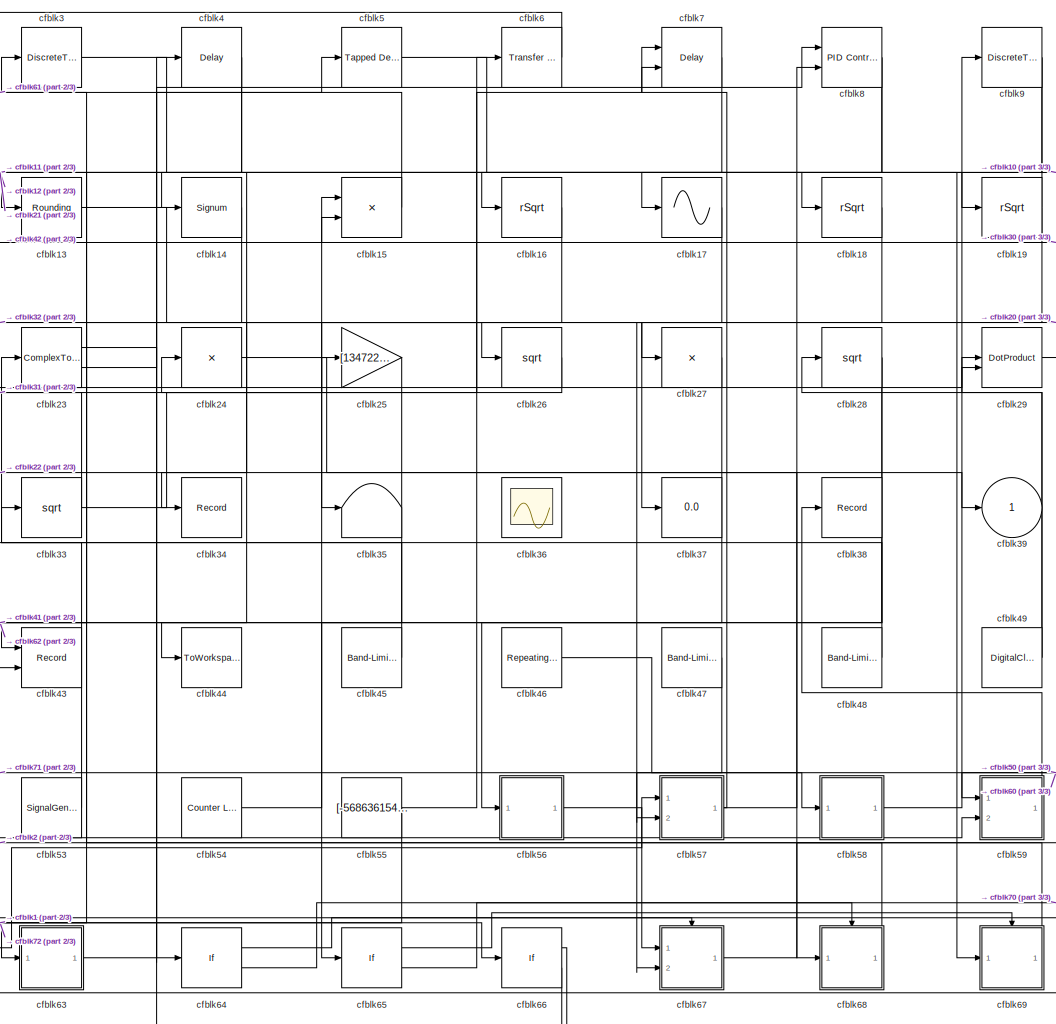
[diagram: root canvas - part 1/3, center side, full height]
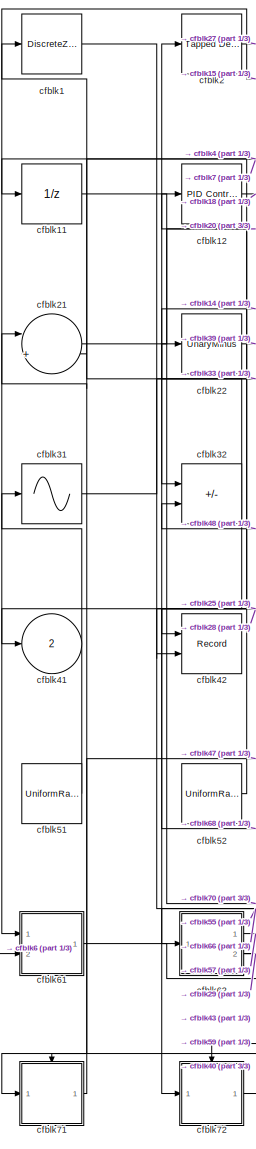
[diagram: root canvas - part 2/3, left side, full height]
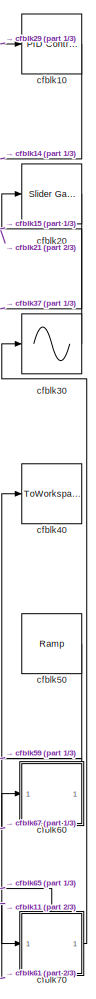
[diagram: root canvas - part 3/3, right side, full height]
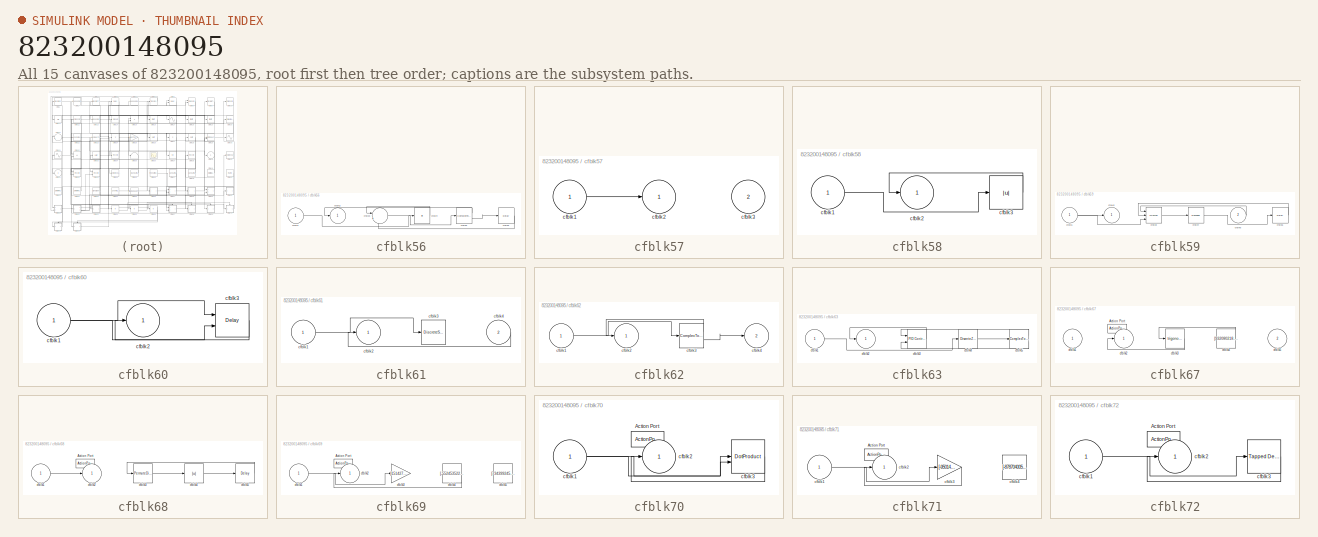
[diagram: thumbnail index - all 15 canvases of the model, root first then tree order]
MODEL slx_823200148095
KIND model
CONFIG AbsTol = auto
CONFIG EnableMultiTasking = off
CONFIG FixedStep = auto
CONFIG MaxStep = auto
CONFIG MinStep = auto
CONFIG RelTol = 1e-3
CONFIG SampleTimeConstraint = Unconstrained
CONFIG SolverName = VariableStepAuto
CONFIG StartTime = 0.0
CONFIG StopTime = 10.0
BLOCK [DiscreteZeroPole] cfblk1
  Gain = 1
  Poles = [0 0.5]
BLOCK [Reference] cfblk10  REF=slpidlib/PID Controller
  Ports = [1, 1]
  SourceBlock = slpidlib/PID Controller
  SourceProductBaseCode = SL
  SourceType = PID 1dof
BLOCK [UnitDelay] cfblk11
  HasFrameUpgradeWarning = on
BLOCK [Reference] cfblk12  REF=slpidlib/PID Controller
  Ports = [1, 1]
  SourceBlock = slpidlib/PID Controller
  SourceProductBaseCode = SL
  SourceType = PID 1dof
BLOCK [Rounding] cfblk13
BLOCK [Signum] cfblk14
BLOCK [Product] cfblk15
  Ports = [2, 1]
BLOCK [Sqrt] cfblk16
  AlgorithmType = Newton-Raphson
  Operator = rSqrt
BLOCK [Sin] cfblk17
  Ports = [1, 1]
  SampleTime = 0
  TimeSource = Use external signal
BLOCK [Sqrt] cfblk18
  AlgorithmType = Newton-Raphson
  Operator = rSqrt
BLOCK [Sqrt] cfblk19
  AlgorithmType = Newton-Raphson
  Operator = rSqrt
BLOCK [Reference] cfblk2  REF=simulink/Discrete/Tapped Delay
  Ports = [1, 1]
  SourceBlock = simulink/Discrete/Tapped Delay
  SourceProductBaseCode = SL
  SourceType = Tapped Delay Line
BLOCK [Reference] cfblk20  REF=simulink/Math
Operations/Slider
Gain
  Ports = [1, 1]
  SourceBlock = simulink/Math\nOperations/Slider\nGain
  SourceProductBaseCode = SL
  SourceType = Slider Gain
BLOCK [Sum] cfblk21
  Inputs = |++
  Ports = [2, 1]
BLOCK [UnaryMinus] cfblk22
BLOCK [ComplexToRealImag] cfblk23
  Ports = [1, 2]
BLOCK [Product] cfblk24
  Inputs = *
  Ports = [1, 1]
BLOCK [Gain] cfblk25
  Gain = [134722466.496300]
BLOCK [Sqrt] cfblk26
BLOCK [Product] cfblk27
  Inputs = *
  Ports = [1, 1]
BLOCK [Sqrt] cfblk28
BLOCK [DotProduct] cfblk29
  OutDataTypeStr = Inherit: Inherit via internal rule
BLOCK [DiscreteTransferFcn] cfblk3
  InputPortMap = u0
  Ports = [1, 1]
  SampleTime = 1
BLOCK [Sin] cfblk30
  Ports = [1, 1]
  SampleTime = 0
  TimeSource = Use external signal
BLOCK [Sin] cfblk31
  Ports = [1, 1]
  SampleTime = 0
  TimeSource = Use external signal
BLOCK [Sum] cfblk32
  IconShape = rectangular
  Inputs = --
  Ports = [2, 1]
BLOCK [Sqrt] cfblk33
BLOCK [Record] cfblk34
  FileSettingsInternal = {"entries":[{"content":{"excelSettings":{"content":{},"type":"Streamout.ExcelSettings"}},"type":"Streamout.FileSettingStorage","uuid":"bef29b94-83e7-4027-bb16-41d4ccbf0901"}],"packageUris":["http://schema.mathworks.com/mf0/streamout_blocks/R2020a"],"version":"1.0"}
  Ports = [1]
  SignalsInternal = {"entries":[{"content":{"signals":[{"content":{"blockPath":["sampleModel218/cfblk34"],"channel":[],"dimensions":[1],"domain":"sampleModel218/cfblk34","lineColor":"#22b573","plots":[1],"port":1,"sid":[""],"signalID":8404,"signalName":"cfblk19"},"type":"RecordBlkView.Signal","uuid":"682ba5d6-6170-4be6-8bc8-0b991276eb6c"}]},"type":"RecordBlkView.InputSignals","uuid":"6295e5b2-cd98-4886-a6f9-ad50cf434...<+97ch>
  VisualizationBindings = {"sparklinesplugin":{"info":[{"bindingParametersList":[],"subplotID":1}]}}
BLOCK [Terminator] cfblk35
BLOCK [Scope] cfblk36
  Floating = on
  NumInputPorts = 1
  Ports = []
BLOCK [Display] cfblk37
  Decimation = 1
  Ports = [1]
BLOCK [Record] cfblk38
  FileSettingsInternal = {"entries":[{"content":{"excelSettings":{"content":{},"type":"Streamout.ExcelSettings"}},"type":"Streamout.FileSettingStorage","uuid":"ef8b5bfe-246b-4d62-b1cf-833902d1d4e0"}],"packageUris":["http://schema.mathworks.com/mf0/streamout_blocks/R2020a"],"version":"1.0"}
  Ports = [1]
  SignalsInternal = {"entries":[{"content":{"signals":[{"content":{"blockPath":["sampleModel218/cfblk38"],"channel":[],"dimensions":[1],"domain":"sampleModel218/cfblk38","lineColor":"#0072bd","plots":[1],"port":1,"sid":[""],"signalID":8408,"signalName":"cfblk59"},"type":"RecordBlkView.Signal","uuid":"0fe45656-84e1-4a5c-a7af-568f8e2af6bb"}]},"type":"RecordBlkView.InputSignals","uuid":"4302e319-4bc6-44ac-a890-59bb7af18...<+97ch>
  VisualizationBindings = {"sparklinesplugin":{"info":[{"bindingParametersList":[],"subplotID":1}]}}
BLOCK [Outport] cfblk39
BLOCK [Delay] cfblk4
  InputPortMap = u0
  Ports = [1, 1]
  SampleTime = 1
BLOCK [ToWorkspace] cfblk40
  FixptAsFi = on
  MaxDataPoints = inf
  Ports = [1]
  SampleTime = -1
  SaveFormat = Timeseries
  VariableName = ihyokqd
BLOCK [Outport] cfblk41
  Port = 2
BLOCK [Record] cfblk42
  CompatibilityTag = XY
  FileSettingsInternal = {"entries":[{"content":{"excelSettings":{"content":{},"type":"Streamout.ExcelSettings"}},"type":"Streamout.FileSettingStorage","uuid":"dbb91467-e294-4d94-b3b6-49aeea81b615"}],"packageUris":["http://schema.mathworks.com/mf0/streamout_blocks/R2020a"],"version":"1.0"}
  Layout = [1 1]
  Ports = [2]
  SignalsInternal = {"entries":[{"content":{"signals":[{"content":{"blockPath":["sampleModel218/cfblk42"],"channel":[],"dimensions":[1],"domain":"sampleModel218/cfblk42","lineColor":"#a2142f","plots":[1],"port":1,"sid":[""],"signalID":8412,"signalName":"cfblk4"},"type":"RecordBlkView.Signal","uuid":"7130b70c-b836-4d37-b96f-bf4e3a6d3351"},{"content":{"blockPath":["sampleModel218/cfblk42"],"channel":[],"dimensions":[1]...<+382ch>
  VisualizationBindings = {"xyplotplugin":{"info":[{"series":[{"bindingParametersList":[{"parameter":"X-Axis","signalID":8412,"signalName":"cfblk4"},{"parameter":"Y-Axis","signalID":8416,"signalName":"cfblk32"}],"seriesID":11565}],"subplotID":1}]}}
BLOCK [Record] cfblk43
  CompatibilityTag = XY
  FileSettingsInternal = {"entries":[{"content":{"excelSettings":{"content":{},"type":"Streamout.ExcelSettings"}},"type":"Streamout.FileSettingStorage","uuid":"aa4a06b4-b09d-4da7-b96e-afa9f30de699"}],"packageUris":["http://schema.mathworks.com/mf0/streamout_blocks/R2020a"],"version":"1.0"}
  Layout = [1 1]
  Ports = [2]
  SignalsInternal = {"entries":[{"content":{"signals":[{"content":{"blockPath":["sampleModel218/cfblk43"],"channel":[],"dimensions":[1],"domain":"sampleModel218/cfblk43","lineColor":"#a2142f","plots":[1],"port":1,"sid":[""],"signalID":8420,"signalName":"cfblk8"},"type":"RecordBlkView.Signal","uuid":"6fbb2089-a476-4745-ac5b-b64432680390"},{"content":{"blockPath":["sampleModel218/cfblk43"],"channel":[],"dimensions":[1]...<+384ch>
  VisualizationBindings = {"xyplotplugin":{"info":[{"series":[{"bindingParametersList":[{"parameter":"X-Axis","signalID":8420,"signalName":"cfblk8"},{"parameter":"Y-Axis","signalID":8424,"signalName":"cfblk62:2"}],"seriesID":17078}],"subplotID":1}]}}
BLOCK [ToWorkspace] cfblk44
  FixptAsFi = on
  MaxDataPoints = inf
  Ports = [1]
  SampleTime = -1
  SaveFormat = Timeseries
  VariableName = mmjkiwr
BLOCK [Reference] cfblk45  REF=simulink/Sources/Band-Limited
White Noise
  Ports = [0, 1]
  SourceBlock = simulink/Sources/Band-Limited\nWhite Noise
  SourceProductBaseCode = SL
  SourceType = Band-Limited White Noise.
BLOCK [Reference] cfblk46  REF=simulink/Sources/Repeating
Sequence
Interpolated
  Ports = [0, 1]
  SourceBlock = simulink/Sources/Repeating\nSequence\nInterpolated
  SourceProductBaseCode = SL
  SourceType = Repeating Sequence Interpolated
BLOCK [Reference] cfblk47  REF=simulink/Sources/Band-Limited
White Noise
  Ports = [0, 1]
  SourceBlock = simulink/Sources/Band-Limited\nWhite Noise
  SourceProductBaseCode = SL
  SourceType = Band-Limited White Noise.
BLOCK [Reference] cfblk48  REF=simulink/Sources/Band-Limited
White Noise
  Ports = [0, 1]
  SourceBlock = simulink/Sources/Band-Limited\nWhite Noise
  SourceProductBaseCode = SL
  SourceType = Band-Limited White Noise.
BLOCK [DigitalClock] cfblk49
BLOCK [Reference] cfblk5  REF=simulink/Discrete/Tapped Delay
  Ports = [1, 1]
  SourceBlock = simulink/Discrete/Tapped Delay
  SourceProductBaseCode = SL
  SourceType = Tapped Delay Line
BLOCK [Reference] cfblk50  REF=simulink/Sources/Ramp
  Ports = [0, 1]
  SourceBlock = simulink/Sources/Ramp
  SourceProductBaseCode = SL
  SourceType = Ramp
BLOCK [UniformRandomNumber] cfblk51
  Maximum = [5315703352.345697]
  Minimum = [-2815779210.415660]
  SampleTime = 0.1
  Seed = [76985381.000000]
BLOCK [UniformRandomNumber] cfblk52
  Maximum = [4756830666.125814]
  Minimum = [-496374868.296474]
  SampleTime = 0.1
  Seed = [22339598.000000]
BLOCK [SignalGenerator] cfblk53
  Amplitude = [563606903.888826]
  Ports = [0, 1]
  Units = rad/sec
BLOCK [Reference] cfblk54  REF=simulink/Sources/Counter
Limited
  Ports = [0, 1]
  SourceBlock = simulink/Sources/Counter\nLimited
  SourceProductBaseCode = SL
  SourceType = Counter Limited
BLOCK [Constant] cfblk55
  SampleTime = 1
  Value = [-568636154.840050]
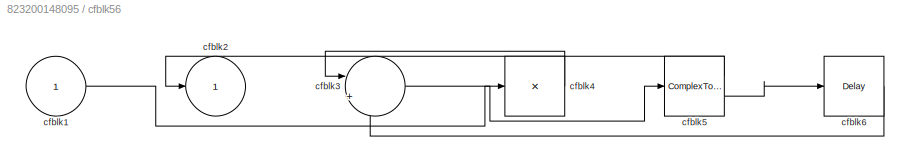
BLOCK [SubSystem] cfblk56
  Ports = [1, 1]
  RequestExecContextInheritance = off
BLOCK [Inport] cfblk56/cfblk1
BLOCK [Outport] cfblk56/cfblk2
BLOCK [Sum] cfblk56/cfblk3
  Inputs = |++
  Ports = [2, 1]
BLOCK [Product] cfblk56/cfblk4
  Inputs = *
  Ports = [1, 1]
BLOCK [ComplexToRealImag] cfblk56/cfblk5
  Ports = [1, 2]
BLOCK [Delay] cfblk56/cfblk6
  InputPortMap = u0
  Ports = [1, 1]
  SampleTime = 1
BLOCK [SubSystem] cfblk57
  Ports = [2, 1]
  RequestExecContextInheritance = off
BLOCK [Inport] cfblk57/cfblk1
BLOCK [Outport] cfblk57/cfblk2
BLOCK [Inport] cfblk57/cfblk3
  Port = 2
BLOCK [SubSystem] cfblk58
  Ports = [1, 1]
  RequestExecContextInheritance = off
BLOCK [Inport] cfblk58/cfblk1
BLOCK [Outport] cfblk58/cfblk2
BLOCK [Abs] cfblk58/cfblk3
  SaturateOnIntegerOverflow = off
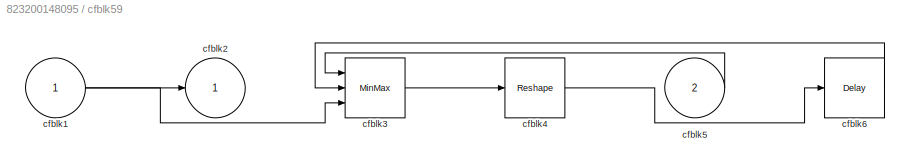
BLOCK [SubSystem] cfblk59
  Ports = [2, 1]
  RequestExecContextInheritance = off
BLOCK [Inport] cfblk59/cfblk1
BLOCK [Outport] cfblk59/cfblk2
BLOCK [MinMax] cfblk59/cfblk3
  Inputs = 3
  Ports = [3, 1]
BLOCK [Reshape] cfblk59/cfblk4
  Ports = [1, 1]
BLOCK [Inport] cfblk59/cfblk5
  Port = 2
BLOCK [Delay] cfblk59/cfblk6
  InputPortMap = u0
  Ports = [1, 1]
  SampleTime = 1
BLOCK [Reference] cfblk6  REF=simulink/Discrete/Transfer Fcn
Lead or Lag
  Ports = [1, 1]
  SourceBlock = simulink/Discrete/Transfer Fcn\nLead or Lag
  SourceProductBaseCode = SL
  SourceType = Lead or Lag Compensator
BLOCK [SubSystem] cfblk60
  Ports = [1, 1]
  RequestExecContextInheritance = off
BLOCK [Inport] cfblk60/cfblk1
BLOCK [Outport] cfblk60/cfblk2
BLOCK [Delay] cfblk60/cfblk3
  DelayLengthSource = Input port
  InputPortMap = u0,p1
  Ports = [2, 1]
  SampleTime = 1
BLOCK [SubSystem] cfblk61
  Ports = [2, 1]
  RequestExecContextInheritance = off
BLOCK [Inport] cfblk61/cfblk1
BLOCK [Outport] cfblk61/cfblk2
BLOCK [DiscreteStateSpace] cfblk61/cfblk3
BLOCK [Inport] cfblk61/cfblk4
  Port = 2
BLOCK [SubSystem] cfblk62
  Ports = [1, 2]
  RequestExecContextInheritance = off
BLOCK [Inport] cfblk62/cfblk1
BLOCK [Outport] cfblk62/cfblk2
BLOCK [ComplexToMagnitudeAngle] cfblk62/cfblk3
  Ports = [1, 2]
BLOCK [Outport] cfblk62/cfblk4
  Port = 2
BLOCK [SubSystem] cfblk63
  Ports = [1, 1]
  RequestExecContextInheritance = off
BLOCK [Inport] cfblk63/cfblk1
BLOCK [Outport] cfblk63/cfblk2
BLOCK [Reference] cfblk63/cfblk3  REF=slpidlib/PID Controller (2DOF)
  Ports = [2, 1]
  SourceBlock = slpidlib/PID Controller (2DOF)
  SourceProductBaseCode = SL
  SourceType = PID 2dof
BLOCK [DiscreteZeroPole] cfblk63/cfblk4
  Gain = 1
  Poles = [0 0.5]
BLOCK [ComplexToMagnitudeAngle] cfblk63/cfblk5
  Ports = [1, 2]
BLOCK [If] cfblk64
  IfExpression = u1 >= 0
  Ports = [1, 2]
  SampleTime = 1
BLOCK [If] cfblk65
  IfExpression = u1 >= 0
  Ports = [1, 2]
  SampleTime = 1
BLOCK [If] cfblk66
  IfExpression = u1 >= 0
  Ports = [1, 2]
  SampleTime = 1
BLOCK [SubSystem] cfblk67
  Ports = [2, 1, 0, 0, 0, 0, 0, 1]
  RequestExecContextInheritance = off
  TreatAsAtomicUnit = on
BLOCK [ActionPort] cfblk67/Action Port
  ActionPortLabel = if(u1 >= 0)
BLOCK [Inport] cfblk67/cfblk1
BLOCK [Outport] cfblk67/cfblk2
BLOCK [Trigonometry] cfblk67/cfblk3
  Ports = [1, 1]
BLOCK [Constant] cfblk67/cfblk4
  SampleTime = 1
  Value = [932080218.937845]
BLOCK [Inport] cfblk67/cfblk5
  Port = 2
BLOCK [SubSystem] cfblk68
  Ports = [1, 1, 0, 0, 0, 0, 0, 1]
  RequestExecContextInheritance = off
  TreatAsAtomicUnit = on
BLOCK [ActionPort] cfblk68/Action Port
  ActionPortLabel = else
BLOCK [Inport] cfblk68/cfblk1
BLOCK [Outport] cfblk68/cfblk2
BLOCK [PermuteDimensions] cfblk68/cfblk3
BLOCK [Abs] cfblk68/cfblk4
  SaturateOnIntegerOverflow = off
BLOCK [Delay] cfblk68/cfblk5
  InputPortMap = u0
  Ports = [1, 1]
BLOCK [SubSystem] cfblk69
  Ports = [1, 1, 0, 0, 0, 0, 0, 1]
  RequestExecContextInheritance = off
  TreatAsAtomicUnit = on
BLOCK [ActionPort] cfblk69/Action Port
  ActionPortLabel = if(u1 >= 0)
BLOCK [Inport] cfblk69/cfblk1
BLOCK [Outport] cfblk69/cfblk2
BLOCK [Gain] cfblk69/cfblk3
  Gain = [151427587.112693]
BLOCK [Constant] cfblk69/cfblk4
  SampleTime = 1
  Value = [-552453522.568799]
BLOCK [Constant] cfblk69/cfblk5
  SampleTime = 1
  Value = [734399245.461963]
BLOCK [Delay] cfblk7
  InputPortMap = u0,e6
  Ports = [2, 1]
  SampleTime = 1
  ShowEnablePort = on
BLOCK [SubSystem] cfblk70
  Ports = [1, 1, 0, 0, 0, 0, 0, 1]
  RequestExecContextInheritance = off
  TreatAsAtomicUnit = on
BLOCK [ActionPort] cfblk70/Action Port
  ActionPortLabel = else
BLOCK [Inport] cfblk70/cfblk1
BLOCK [Outport] cfblk70/cfblk2
BLOCK [DotProduct] cfblk70/cfblk3
  OutDataTypeStr = Inherit: Inherit via internal rule
BLOCK [SubSystem] cfblk71
  Ports = [1, 1, 0, 0, 0, 0, 0, 1]
  RequestExecContextInheritance = off
  TreatAsAtomicUnit = on
BLOCK [ActionPort] cfblk71/Action Port
  ActionPortLabel = if(u1 >= 0)
BLOCK [Inport] cfblk71/cfblk1
BLOCK [Outport] cfblk71/cfblk2
BLOCK [Gain] cfblk71/cfblk3
  Gain = [-950142801.307049]
BLOCK [Constant] cfblk71/cfblk4
  SampleTime = 1
  Value = [-878704005.061067]
BLOCK [SubSystem] cfblk72
  Ports = [1, 1, 0, 0, 0, 0, 0, 1]
  RequestExecContextInheritance = off
  TreatAsAtomicUnit = on
BLOCK [ActionPort] cfblk72/Action Port
  ActionPortLabel = else
BLOCK [Inport] cfblk72/cfblk1
BLOCK [Outport] cfblk72/cfblk2
BLOCK [Reference] cfblk72/cfblk3  REF=simulink/Discrete/Tapped Delay
  Ports = [1, 1]
  SourceBlock = simulink/Discrete/Tapped Delay
  SourceProductBaseCode = SL
  SourceType = Tapped Delay Line
BLOCK [Reference] cfblk8  REF=slpidlib/PID Controller (2DOF)
  Ports = [2, 1]
  SourceBlock = slpidlib/PID Controller (2DOF)
  SourceProductBaseCode = SL
  SourceType = PID 2dof
BLOCK [DiscreteTransferFcn] cfblk9
  InputPortMap = u0
  Ports = [1, 1]
  SampleTime = 1
LINE cfblk10:1 -> cfblk14:1
LINE cfblk11:1 -> cfblk70:1
LINE cfblk12:1 -> cfblk18:1
LINE cfblk13:1 -> cfblk26:1
LINE cfblk14:1 -> cfblk32:1
LINE cfblk15:1 -> cfblk61:1
LINE cfblk16:1 -> cfblk35:1
LINE cfblk17:1 -> cfblk63:1
LINE cfblk18:1 -> cfblk57:2
NET cfblk19:1 -> cfblk16:1, cfblk34:1
LINE cfblk1:1 -> cfblk66:1
LINE cfblk20:1 -> cfblk37:1
LINE cfblk21:1 -> cfblk20:1
LINE cfblk22:1 -> cfblk39:1
LINE cfblk23:1 -> cfblk64:1
LINE cfblk23:2 -> cfblk8:1
LINE cfblk24:1 -> cfblk68:1
LINE cfblk25:1 -> cfblk41:1
LINE cfblk26:1 -> cfblk24:1
LINE cfblk27:1 -> cfblk65:1
NET cfblk28:1 -> cfblk56:1, cfblk62:1
LINE cfblk29:1 -> cfblk10:1
LINE cfblk2:1 -> cfblk27:1
LINE cfblk30:1 -> cfblk15:2
LINE cfblk31:1 -> cfblk25:1
NET cfblk32:1 -> cfblk1:1, cfblk42:2
NET cfblk33:1 -> cfblk12:1, cfblk6:1
LINE cfblk3:1 -> cfblk19:1
LINE cfblk45:1 -> cfblk33:1
LINE cfblk46:1 -> cfblk58:1
LINE cfblk47:1 -> cfblk71:1
LINE cfblk48:1 -> cfblk32:2
NET cfblk49:1 -> cfblk28:1, cfblk29:1
NET cfblk4:1 -> cfblk21:2, cfblk42:1
LINE cfblk50:1 -> cfblk67:2
LINE cfblk51:1 -> cfblk31:1
LINE cfblk52:1 -> cfblk22:1
LINE cfblk53:1 -> cfblk23:1
LINE cfblk54:1 -> cfblk15:1
NET cfblk55:1 -> cfblk72:1, cfblk7:2
LINE cfblk56/cfblk1:1 -> cfblk56/cfblk4:1
LINE cfblk56/cfblk3:1 -> cfblk56/cfblk5:1
LINE cfblk56/cfblk4:1 -> cfblk56/cfblk3:1
LINE cfblk56/cfblk5:1 -> cfblk56/cfblk2:1
LINE cfblk56/cfblk5:2 -> cfblk56/cfblk6:1
LINE cfblk56/cfblk6:1 -> cfblk56/cfblk3:2
LINE cfblk56:1 -> cfblk67:1
LINE cfblk57/cfblk1:1 -> cfblk57/cfblk2:1
NET cfblk57:1 -> cfblk7:1, cfblk8:2
LINE cfblk58/cfblk1:1 -> cfblk58/cfblk3:1
LINE cfblk58/cfblk3:1 -> cfblk58/cfblk2:1
LINE cfblk58:1 -> cfblk9:1
NET cfblk59/cfblk1:1 -> cfblk59/cfblk2:1, cfblk59/cfblk3:3
LINE cfblk59/cfblk3:1 -> cfblk59/cfblk4:1
LINE cfblk59/cfblk4:1 -> cfblk59/cfblk6:1
LINE cfblk59/cfblk5:1 -> cfblk59/cfblk3:1
LINE cfblk59/cfblk6:1 -> cfblk59/cfblk3:2
LINE cfblk59:1 -> cfblk38:1
LINE cfblk5:1 -> cfblk69:1
NET cfblk60/cfblk1:1 -> cfblk60/cfblk3:1, cfblk60/cfblk3:2
LINE cfblk60/cfblk3:1 -> cfblk60/cfblk2:1
LINE cfblk60:1 -> cfblk59:1
LINE cfblk61/cfblk1:1 -> cfblk61/cfblk3:1
LINE cfblk61/cfblk4:1 -> cfblk61/cfblk2:1
LINE cfblk61:1 -> cfblk40:1
LINE cfblk62/cfblk1:1 -> cfblk62/cfblk3:1
LINE cfblk62/cfblk3:1 -> cfblk62/cfblk2:1
LINE cfblk62/cfblk3:2 -> cfblk62/cfblk4:1
LINE cfblk62:1 -> cfblk57:1
NET cfblk62:2 -> cfblk29:2, cfblk43:2, cfblk59:2
LINE cfblk63/cfblk1:1 -> cfblk63/cfblk4:1
LINE cfblk63/cfblk3:1 -> cfblk63/cfblk2:1
LINE cfblk63/cfblk4:1 -> cfblk63/cfblk5:1
LINE cfblk63/cfblk5:1 -> cfblk63/cfblk3:1
LINE cfblk63/cfblk5:2 -> cfblk63/cfblk3:2
LINE cfblk63:1 -> cfblk5:1
LINE cfblk64:1 -> cfblk67:ifaction
LINE cfblk64:2 -> cfblk68:ifaction
LINE cfblk65:1 -> cfblk69:ifaction
LINE cfblk65:2 -> cfblk70:ifaction
LINE cfblk66:1 -> cfblk71:ifaction
LINE cfblk66:2 -> cfblk72:ifaction
LINE cfblk67/cfblk3:1 -> cfblk67/cfblk2:1
LINE cfblk67/cfblk4:1 -> cfblk67/cfblk3:1
LINE cfblk67:1 -> cfblk60:1
LINE cfblk68/cfblk1:1 -> cfblk68/cfblk2:1
LINE cfblk68/cfblk3:1 -> cfblk68/cfblk4:1
LINE cfblk68/cfblk4:1 -> cfblk68/cfblk5:1
LINE cfblk68/cfblk5:1 -> cfblk68/cfblk3:1
LINE cfblk68:1 -> cfblk2:1
LINE cfblk69/cfblk1:1 -> cfblk69/cfblk3:1
LINE cfblk69/cfblk4:1 -> cfblk69/cfblk2:1
LINE cfblk69:1 -> cfblk3:1
LINE cfblk6:1 -> cfblk61:2
NET cfblk70/cfblk1:1 -> cfblk70/cfblk3:1, cfblk70/cfblk3:2
LINE cfblk70/cfblk3:1 -> cfblk70/cfblk2:1
LINE cfblk70:1 -> cfblk30:1
LINE cfblk71/cfblk1:1 -> cfblk71/cfblk3:1
LINE cfblk71/cfblk3:1 -> cfblk71/cfblk2:1
LINE cfblk71:1 -> cfblk21:1
LINE cfblk72/cfblk1:1 -> cfblk72/cfblk3:1
LINE cfblk72/cfblk3:1 -> cfblk72/cfblk2:1
LINE cfblk72:1 -> cfblk4:1
LINE cfblk7:1 -> cfblk11:1
NET cfblk8:1 -> cfblk17:1, cfblk43:1
NET cfblk9:1 -> cfblk13:1, cfblk44:1
note: NET lines group one-source signal fan-out (src -> all destinations, sorted); 1:1 wires keep LINE
